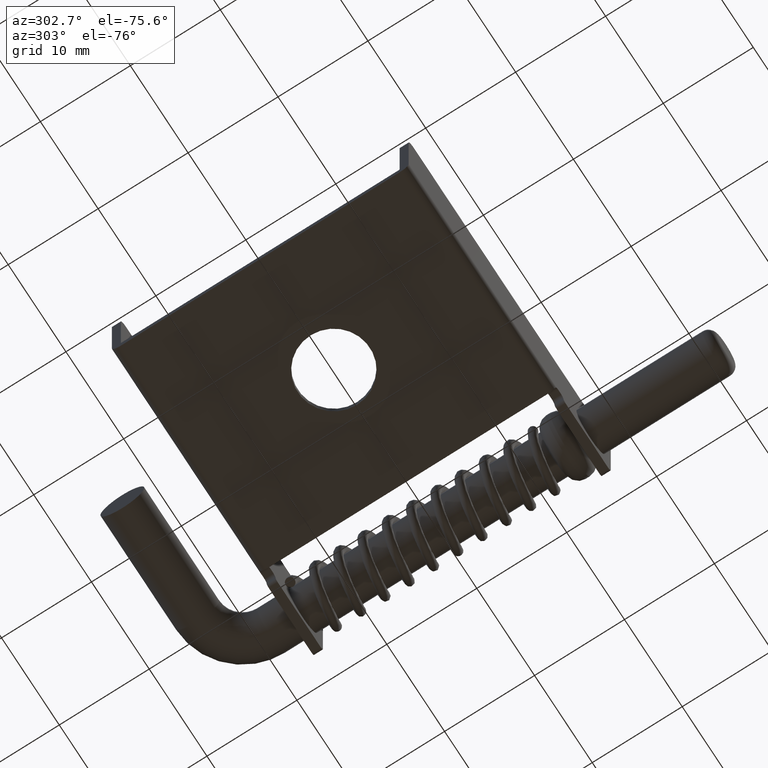
[diagram: clean part render]
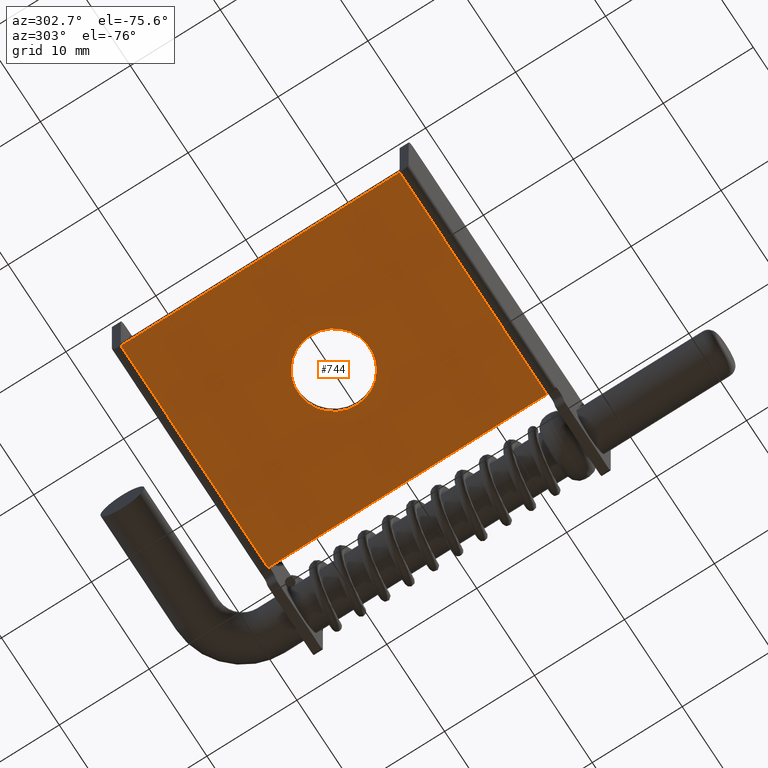
[diagram: same view with one face highlighted and labeled with its STEP entity id]
A machine part, auxiliary view. The second image highlights one B-rep face of the part: STEP entity #744.
In plain terms, the highlighted planar face has unit normal (0, 0, 1).
Its self-contained STEP definition (entity closure, byte-faithful):
#36=PLANE('',#824);
#48=LINE('',#1116,#102);
#56=LINE('',#1145,#110);
#63=LINE('',#1161,#117);
#74=LINE('',#1206,#128);
#102=VECTOR('',#875,25.5);
#110=VECTOR('',#901,31.);
#117=VECTOR('',#912,25.5);
#128=VECTOR('',#943,31.);
#161=FACE_BOUND('',#253,.T.);
#200=FACE_OUTER_BOUND('',#252,.T.);
#252=EDGE_LOOP('',(#651,#652,#653,#654));
#253=EDGE_LOOP('',(#655));
#311=CIRCLE('',#825,4.);
#328=VERTEX_POINT('',#1098);
#332=VERTEX_POINT('',#1114);
#344=VERTEX_POINT('',#1144);
#351=VERTEX_POINT('',#1160);
#382=VERTEX_POINT('',#1278);
#403=EDGE_CURVE('',#332,#328,#48,.T.);
#417=EDGE_CURVE('',#328,#344,#56,.T.);
#425=EDGE_CURVE('',#344,#351,#63,.T.);
#444=EDGE_CURVE('',#332,#351,#74,.T.);
#481=EDGE_CURVE('',#382,#382,#311,.T.);
#651=ORIENTED_EDGE('',*,*,#403,.F.);
#652=ORIENTED_EDGE('',*,*,#444,.T.);
#653=ORIENTED_EDGE('',*,*,#425,.F.);
#654=ORIENTED_EDGE('',*,*,#417,.F.);
#655=ORIENTED_EDGE('',*,*,#481,.T.);
#744=ADVANCED_FACE('',(#200,#161),#36,.F.);
#824=AXIS2_PLACEMENT_3D('',#1277,#1026,#1027);
#825=AXIS2_PLACEMENT_3D('',#1279,#1028,#1029);
#875=DIRECTION('',(-1.,-6.34413156928661E-17,0.));
#901=DIRECTION('',(3.36431219583381E-16,-1.,0.));
#912=DIRECTION('',(1.,0.,0.));
#943=DIRECTION('',(2.86509167645202E-16,-1.,0.));
#1026=DIRECTION('center_axis',(0.,0.,1.));
#1027=DIRECTION('ref_axis',(1.,0.,0.));
#1028=DIRECTION('center_axis',(0.,0.,1.));
#1029=DIRECTION('ref_axis',(-1.,-8.7076315656875E-17,0.));
#1098=CARTESIAN_POINT('',(-17.5,15.5,0.));
#1114=CARTESIAN_POINT('',(7.99999999999999,15.5,0.));
#1116=CARTESIAN_POINT('',(8.75,15.5,0.));
#1144=CARTESIAN_POINT('',(-17.5,-15.5,0.));
#1145=CARTESIAN_POINT('',(-17.5,16.5,0.));
#1160=CARTESIAN_POINT('',(8.,-15.5,0.));
#1161=CARTESIAN_POINT('',(-8.75,-15.5,0.));
#1206=CARTESIAN_POINT('',(8.,-7.75,0.));
#1277=CARTESIAN_POINT('Origin',(9.79608551139844E-16,2.4980018054066E-15,
0.));
#1278=CARTESIAN_POINT('',(-0.749999999999998,8.38163982286442E-16,0.));
#1279=CARTESIAN_POINT('Origin',(-4.75,0.,0.));